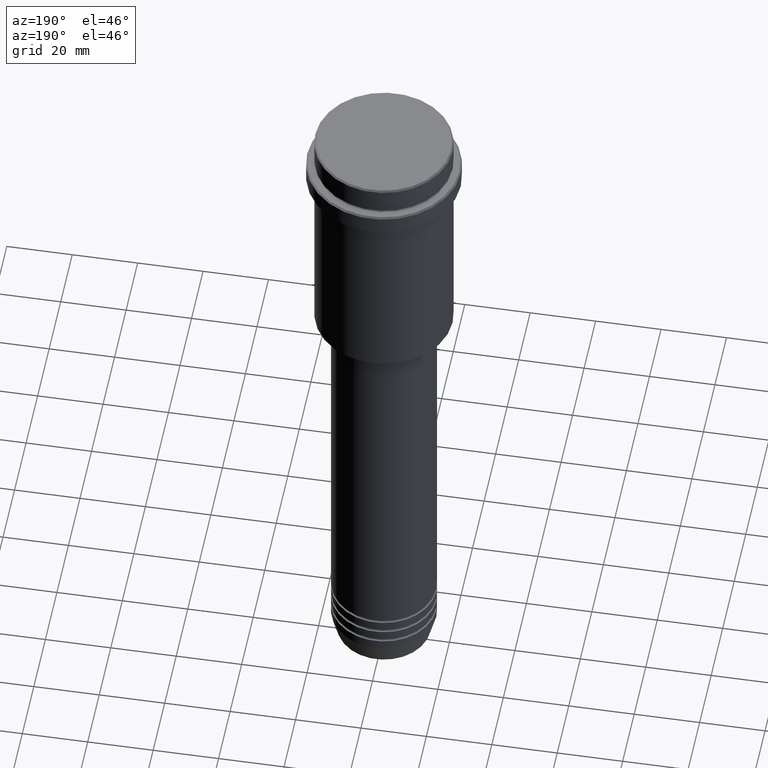
[diagram: clean part render]
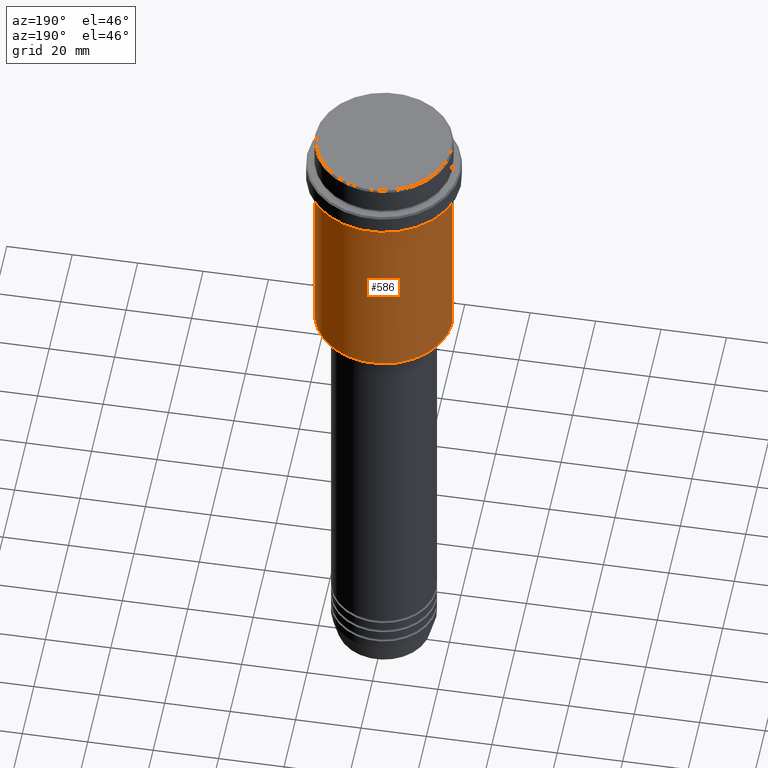
[diagram: same view with one face highlighted and labeled with its STEP entity id]
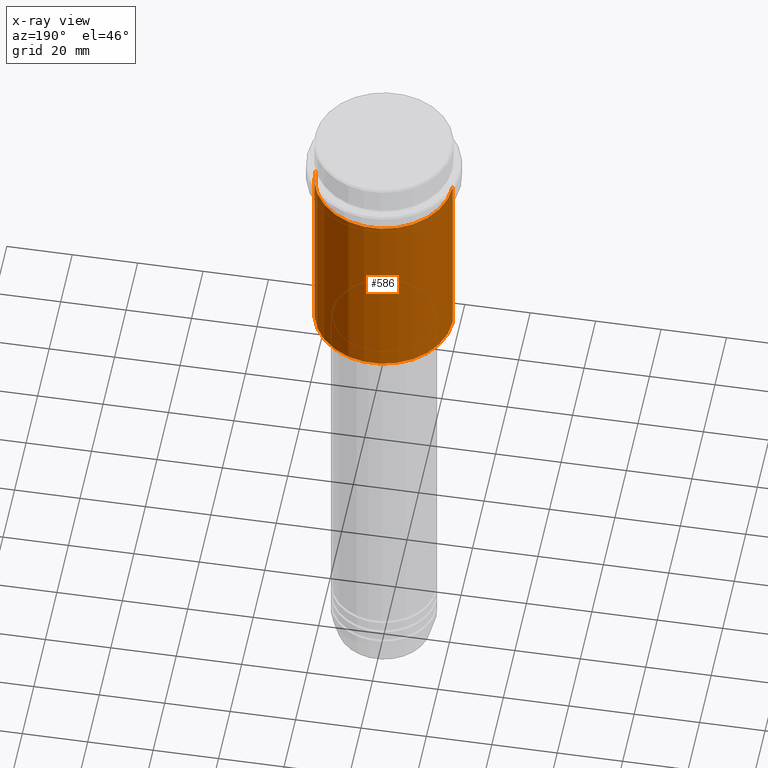
[diagram: x-ray of the same camera — body ghosted, the highlighted face saturated]
A machine part, auxiliary view. The second image highlights one B-rep face of the part: STEP entity #586.
The next image is the same camera in x-ray: the body ghosted, the highlighted face saturated — about 0% of this face is hidden behind the body in this view.
In plain terms, the highlighted cylindrical surface (partial cylindrical patch) has radius 21 mm, axis along (-0, -0, 1).
Its self-contained STEP definition (entity closure, byte-faithful):
#19 = FACE_OUTER_BOUND ( 'NONE', #60, .T. ) ;
#60 = EDGE_LOOP ( 'NONE', ( #209, #896, #528, #260 ) ) ;
#68 = EDGE_CURVE ( 'NONE', #791, #483, #608, .T. ) ;
#185 = DIRECTION ( 'NONE',  ( 1.000000000000000000, 0.000000000000000000, 0.000000000000000000 ) ) ;
#196 = AXIS2_PLACEMENT_3D ( 'NONE', #336, #981, #452 ) ;
#209 = ORIENTED_EDGE ( 'NONE', *, *, #526, .T. ) ;
#246 = DIRECTION ( 'NONE',  ( -0.000000000000000000, -0.000000000000000000, 1.000000000000000000 ) ) ;
#252 = LINE ( 'NONE', #1005, #1063 ) ;
#260 = ORIENTED_EDGE ( 'NONE', *, *, #68, .F. ) ;
#336 = CARTESIAN_POINT ( 'NONE',  ( 0.000000000000000000, 0.000000000000000000, -74.50000000000001421 ) ) ;
#370 = CARTESIAN_POINT ( 'NONE',  ( -21.00000000000000000, 2.571758278209441661E-15, -74.50000000000001421 ) ) ;
#409 = VERTEX_POINT ( 'NONE', #1103 ) ;
#452 = DIRECTION ( 'NONE',  ( -1.000000000000000000, 0.000000000000000000, 0.000000000000000000 ) ) ;
#483 = VERTEX_POINT ( 'NONE', #1210 ) ;
#513 = DIRECTION ( 'NONE',  ( -0.000000000000000000, -0.000000000000000000, 1.000000000000000000 ) ) ;
#526 = EDGE_CURVE ( 'NONE', #791, #640, #941, .T. ) ;
#528 = ORIENTED_EDGE ( 'NONE', *, *, #802, .F. ) ;
#586 = ADVANCED_FACE ( 'NONE', ( #19 ), #1233, .T. ) ;
#604 = CIRCLE ( 'NONE', #1111, 21.00000000000000000 ) ;
#608 = LINE ( 'NONE', #1035, #828 ) ;
#640 = VERTEX_POINT ( 'NONE', #370 ) ;
#671 = EDGE_CURVE ( 'NONE', #640, #409, #252, .T. ) ;
#706 = CARTESIAN_POINT ( 'NONE',  ( 21.00000000000000000, 0.000000000000000000, -74.50000000000001421 ) ) ;
#784 = DIRECTION ( 'NONE',  ( 1.000000000000000000, 0.000000000000000000, 0.000000000000000000 ) ) ;
#791 = VERTEX_POINT ( 'NONE', #706 ) ;
#802 = EDGE_CURVE ( 'NONE', #483, #409, #604, .T. ) ;
#828 = VECTOR ( 'NONE', #1361, 1000.000000000000000 ) ;
#893 = DIRECTION ( 'NONE',  ( -0.000000000000000000, -0.000000000000000000, 1.000000000000000000 ) ) ;
#896 = ORIENTED_EDGE ( 'NONE', *, *, #671, .T. ) ;
#941 = CIRCLE ( 'NONE', #196, 21.00000000000000000 ) ;
#981 = DIRECTION ( 'NONE',  ( -0.000000000000000000, -0.000000000000000000, 1.000000000000000000 ) ) ;
#1005 = CARTESIAN_POINT ( 'NONE',  ( -21.00000000000000000, 2.571758278209441661E-15, 0.000000000000000000 ) ) ;
#1035 = CARTESIAN_POINT ( 'NONE',  ( 21.00000000000000000, 0.000000000000000000, 0.000000000000000000 ) ) ;
#1063 = VECTOR ( 'NONE', #246, 1000.000000000000000 ) ;
#1103 = CARTESIAN_POINT ( 'NONE',  ( -21.00000000000000000, 2.571758278209441661E-15, -16.00000000000000355 ) ) ;
#1111 = AXIS2_PLACEMENT_3D ( 'NONE', #1259, #513, #185 ) ;
#1210 = CARTESIAN_POINT ( 'NONE',  ( 21.00000000000000000, 0.000000000000000000, -16.00000000000000355 ) ) ;
#1233 = CYLINDRICAL_SURFACE ( 'NONE', #1333, 21.00000000000000000 ) ;
#1259 = CARTESIAN_POINT ( 'NONE',  ( 0.000000000000000000, 0.000000000000000000, -16.00000000000000355 ) ) ;
#1333 = AXIS2_PLACEMENT_3D ( 'NONE', #1345, #893, #784 ) ;
#1345 = CARTESIAN_POINT ( 'NONE',  ( 0.000000000000000000, 0.000000000000000000, 0.000000000000000000 ) ) ;
#1361 = DIRECTION ( 'NONE',  ( -0.000000000000000000, -0.000000000000000000, 1.000000000000000000 ) ) ;